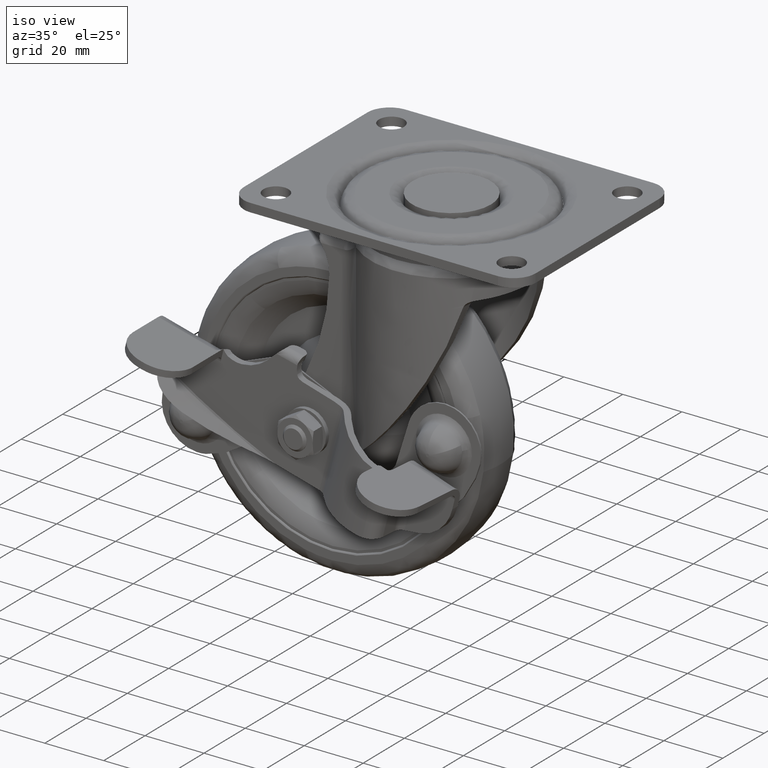
[diagram: clean part render]
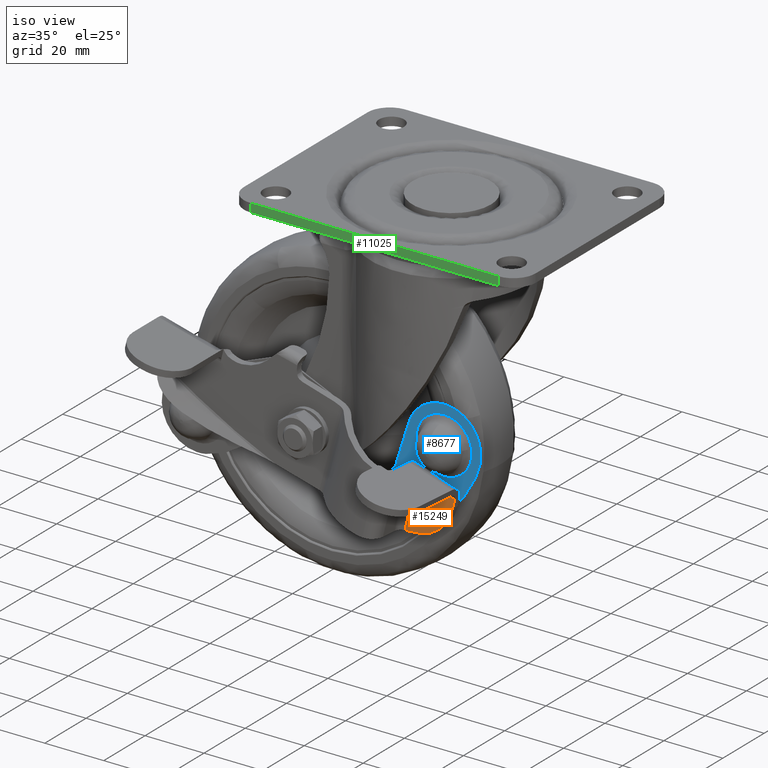
[diagram: same view with three faces highlighted in distinct colors, each labeled with its STEP entity id]
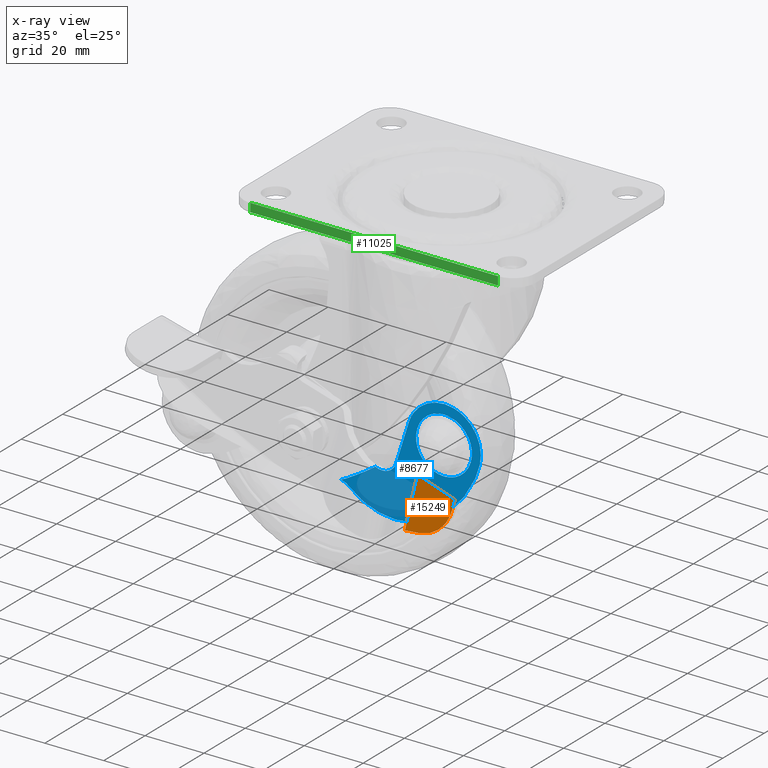
[diagram: x-ray of the same camera — body ghosted, the three highlighted faces saturated]
A machine part, iso view with three faces highlighted in distinct colors.
The next image is the same camera in x-ray (body ghosted, the three faces saturated) — at least one of them is partly hidden behind the body in this view.
Their STEP definitions:

[orange] entity #15249 — the highlighted face is a freeform B-spline surface patch.
#12298=CARTESIAN_POINT('',(4.928505042548230,-22.147842466118750,-94.650247182660905));
#12299=VERTEX_POINT('',#12298);
#12300=CARTESIAN_POINT('',(16.477124624208400,-23.188666743639299,-83.714800008653995));
#12301=VERTEX_POINT('',#12300);
#12302=CARTESIAN_POINT('',(4.928505042548230,-22.147842466118750,-94.650247182660905));
#12303=CARTESIAN_POINT('',(6.039942659360682,-22.248011256539819,-94.428720153109424));
#12304=CARTESIAN_POINT('',(8.295730696862936,-22.451315117903551,-93.703268879170835));
#12305=CARTESIAN_POINT('',(11.222599797990680,-22.715100447053750,-91.917436615906283));
#12306=CARTESIAN_POINT('',(13.354150865981049,-22.907207398421569,-89.826574290826031));
#12307=CARTESIAN_POINT('',(15.238442535516500,-23.077029990785459,-87.188851767007833));
#12308=CARTESIAN_POINT('',(16.104484647640430,-23.155082406425372,-85.154874591796997));
#12309=CARTESIAN_POINT('',(16.477124624208400,-23.188666743639299,-83.714800008653995));
#12310=B_SPLINE_CURVE_WITH_KNOTS('',3,(#12302,#12303,#12304,#12305,#12306,#12307,#12308,#12309),.UNSPECIFIED.,.F.,.U.,(4,1,1,1,1,4),(0.000000086868337,3.413161323361107,7.088946842061720,10.239465602790171,12.339928231656719,16.803307958044840),.UNSPECIFIED.);
#12311=EDGE_CURVE('',#12299,#12301,#12310,.T.);
#12724=CARTESIAN_POINT('',(3.778076320847235,-22.044159585698502,-77.067411118623596));
#12725=VERTEX_POINT('',#12724);
#12760=CARTESIAN_POINT('',(-0.702437590623382,-21.640351353740400,-95.418488651041102));
#12761=VERTEX_POINT('',#12760);
#12762=CARTESIAN_POINT('',(3.778076320847235,-22.044159585698502,-77.067411118623596));
#12763=CARTESIAN_POINT('',(-0.702437590623382,-21.640351353740400,-95.418488651041102));
#12764=QUASI_UNIFORM_CURVE('',1,(#12762,#12763),.UNSPECIFIED.,.F.,.U.);
#12765=EDGE_CURVE('',#12725,#12761,#12764,.T.);
#12819=CARTESIAN_POINT('',(17.285224953219199,-23.261497131302448,-80.598841801796993));
#12820=VERTEX_POINT('',#12819);
#12821=CARTESIAN_POINT('',(17.285224953219199,-23.261497131302448,-80.598841801796993));
#12822=CARTESIAN_POINT('',(3.778076320847235,-22.044159585698502,-77.067411118623596));
#12823=QUASI_UNIFORM_CURVE('',1,(#12821,#12822),.UNSPECIFIED.,.F.,.U.);
#12824=EDGE_CURVE('',#12820,#12725,#12823,.T.);
#13632=CARTESIAN_POINT('',(16.477124624208400,-23.188666743639299,-83.714800008653995));
#13633=CARTESIAN_POINT('',(17.285224953219199,-23.261497131302448,-80.598841801796993));
#13634=QUASI_UNIFORM_CURVE('',1,(#13632,#13633),.UNSPECIFIED.,.F.,.U.);
#13635=EDGE_CURVE('',#12301,#12820,#13634,.T.);
#14425=CARTESIAN_POINT('',(4.928505042548230,-22.147842466118750,-94.650247182660905));
#14426=CARTESIAN_POINT('',(3.069420522494041,-21.980291678879421,-95.021033759333420));
#14427=CARTESIAN_POINT('',(1.187777974505539,-21.810707839727559,-95.277737130884248));
#14428=CARTESIAN_POINT('',(-0.702437590623382,-21.640351353740400,-95.418488651041102));
#14429=B_SPLINE_CURVE_WITH_KNOTS('',3,(#14425,#14426,#14427,#14428),.UNSPECIFIED.,.F.,.U.,(4,4),(1.216257E-009,5.709276673890964),.UNSPECIFIED.);
#14430=EDGE_CURVE('',#12299,#12761,#14429,.T.);
#15237=CARTESIAN_POINT('',(-1.600921299824737,-21.559375125293240,-76.150777136478453));
#15238=CARTESIAN_POINT('',(18.183709144887260,-23.342473403232109,-76.150777136478453));
#15239=CARTESIAN_POINT('',(-1.600921299824737,-21.559375125293240,-96.335123945757616));
#15240=CARTESIAN_POINT('',(18.183709144887260,-23.342473403232109,-96.335123945757616));
#15241=B_SPLINE_SURFACE_WITH_KNOTS('',1,1,((#15237,#15239),(#15238,#15240)),.UNSPECIFIED.,.F.,.F.,.U.,(2,2),(2,2),(0.0,19.864819186255211),(0.0,20.184346809279159),.UNSPECIFIED.);
#15242=ORIENTED_EDGE('',*,*,#14430,.F.);
#15243=ORIENTED_EDGE('',*,*,#12311,.T.);
#15244=ORIENTED_EDGE('',*,*,#13635,.T.);
#15245=ORIENTED_EDGE('',*,*,#12824,.T.);
#15246=ORIENTED_EDGE('',*,*,#12765,.T.);
#15247=EDGE_LOOP('',(#15242,#15243,#15244,#15245,#15246));
#15248=FACE_OUTER_BOUND('',#15247,.T.);
#15249=ADVANCED_FACE('',(#15248),#15241,.F.);

[blue] entity #8677 — the highlighted face is a freeform B-spline surface patch.
#4903=CARTESIAN_POINT('',(17.879526056759371,-15.800000000000001,-67.995695562193390));
#4904=VERTEX_POINT('',#4903);
#4915=CARTESIAN_POINT('',(8.466438999999900,-15.800000000000001,-59.696942999999983));
#4916=VERTEX_POINT('',#4915);
#4917=CARTESIAN_POINT('',(8.466438999999900,-15.800000000000001,-59.696942999999983));
#4918=CARTESIAN_POINT('',(9.680649921968385,-15.800000000000010,-59.695789105920632));
#4919=CARTESIAN_POINT('',(11.607876973364510,-15.799999999999990,-60.072202856957297));
#4920=CARTESIAN_POINT('',(13.692738892618589,-15.800000000000010,-61.202997166908922));
#4921=CARTESIAN_POINT('',(15.031255565523130,-15.800000000000001,-62.279699674387082));
#4922=CARTESIAN_POINT('',(16.137620655778449,-15.800000000000001,-63.502708167142167));
#4923=CARTESIAN_POINT('',(17.288400326420099,-15.800000000000001,-65.407376580962591));
#4924=CARTESIAN_POINT('',(17.754695680286911,-15.800000000000010,-67.003677720720091));
#4925=CARTESIAN_POINT('',(17.879526056759371,-15.800000000000001,-67.995695562193390));
#4926=B_SPLINE_CURVE_WITH_KNOTS('',3,(#4917,#4918,#4919,#4920,#4921,#4922,#4923,#4924,#4925),.UNSPECIFIED.,.F.,.U.,(4,1,1,1,1,1,4),(0.000000100593509,3.642143002269124,5.784596378793479,7.070021977323084,8.783936148368509,10.712177525431660,13.711567911572351),.UNSPECIFIED.);
#4927=EDGE_CURVE('',#4916,#4904,#4926,.T.);
#4929=CARTESIAN_POINT('',(-0.946648056759568,-15.800000000000001,-70.373994437806800));
#4930=VERTEX_POINT('',#4929);
#4931=CARTESIAN_POINT('',(-0.946648056759568,-15.800000000000001,-70.373994437806800));
#4932=CARTESIAN_POINT('',(-1.030808169815192,-15.799999999999960,-69.708642804212957));
#4933=CARTESIAN_POINT('',(-1.057976548756640,-15.800000000000070,-68.317869431924308));
#4934=CARTESIAN_POINT('',(-0.699378421961215,-15.799999999999971,-66.539832735688805));
#4935=CARTESIAN_POINT('',(0.029251631759985,-15.800000000000040,-64.704659816834777));
#4936=CARTESIAN_POINT('',(1.020731357388698,-15.799999999999990,-63.180604996818211));
#4937=CARTESIAN_POINT('',(2.493219507765403,-15.800000000000001,-61.737717595550301));
#4938=CARTESIAN_POINT('',(4.041335826966635,-15.800000000000010,-60.716380668712382));
#4939=CARTESIAN_POINT('',(6.077376226671046,-15.800000000000001,-59.908528775567810));
#4940=CARTESIAN_POINT('',(7.586172183992257,-15.800000000000001,-59.696607495552122));
#4941=CARTESIAN_POINT('',(8.466438999999900,-15.800000000000001,-59.696942999999983));
#4942=B_SPLINE_CURVE_WITH_KNOTS('',3,(#4931,#4932,#4933,#4934,#4935,#4936,#4937,#4938,#4939,#4940,#4941),.UNSPECIFIED.,.F.,.U.,(4,1,1,1,1,1,1,1,4),(0.000000456229678,2.011959540050206,4.149742683847633,5.407277901912261,7.922349894593872,9.556964401201757,11.568963380957150,13.455252513971169,16.095964338495250),.UNSPECIFIED.);
#4943=EDGE_CURVE('',#4930,#4916,#4942,.T.);
#4996=CARTESIAN_POINT('',(8.466438999999900,-15.800000000000001,-78.672747000000200));
#4997=VERTEX_POINT('',#4996);
#4998=CARTESIAN_POINT('',(8.466438999999900,-15.800000000000001,-78.672747000000200));
#4999=CARTESIAN_POINT('',(7.466611414070922,-15.800000000000001,-78.673299229241337));
#5000=CARTESIAN_POINT('',(5.681594617286947,-15.800000000000020,-78.387855096458409));
#5001=CARTESIAN_POINT('',(3.272820112826314,-15.800000000000010,-77.252971490135820));
#5002=CARTESIAN_POINT('',(1.564016180406533,-15.799999999999979,-75.813720250466844));
#5003=CARTESIAN_POINT('',(0.314001118328552,-15.800000000000010,-74.151857592802543));
#5004=CARTESIAN_POINT('',(-0.534381875404205,-15.800000000000029,-72.409286242566907));
#5005=CARTESIAN_POINT('',(-0.857290037452985,-15.799999999999990,-71.082515963979830));
#5006=CARTESIAN_POINT('',(-0.946648056759568,-15.800000000000001,-70.373994437806800));
#5007=B_SPLINE_CURVE_WITH_KNOTS('',3,(#4998,#4999,#5000,#5001,#5002,#5003,#5004,#5005,#5006),.UNSPECIFIED.,.F.,.U.,(4,1,1,1,1,1,4),(0.000000100606178,2.999390486742964,5.356117017135428,7.926971633375271,9.640924423086002,11.569170828372190,13.711567911572329),.UNSPECIFIED.);
#5008=EDGE_CURVE('',#4997,#4930,#5007,.T.);
#5010=CARTESIAN_POINT('',(17.879526056759371,-15.800000000000001,-67.995695562193390));
#5011=CARTESIAN_POINT('',(17.953125399904579,-15.800000000000001,-68.577888201315488));
#5012=CARTESIAN_POINT('',(17.994615093420801,-15.800000000000001,-69.840124730623174));
#5013=CARTESIAN_POINT('',(17.667533902958571,-15.800000000000029,-71.794103665016067));
#5014=CARTESIAN_POINT('',(16.955252159973789,-15.799999999999921,-73.553630619801808));
#5015=CARTESIAN_POINT('',(15.923379395242030,-15.800000000000120,-75.139711459469765));
#5016=CARTESIAN_POINT('',(14.555277060455920,-15.799999999999960,-76.572666688056515));
#5017=CARTESIAN_POINT('',(12.925963642828510,-15.800000000000010,-77.632080978479408));
#5018=CARTESIAN_POINT('',(10.855366817493911,-15.799999999999990,-78.453495725642426));
#5019=CARTESIAN_POINT('',(9.430588972651989,-15.800000000000010,-78.673275282217432));
#5020=CARTESIAN_POINT('',(8.466438999999900,-15.800000000000001,-78.672747000000200));
#5021=B_SPLINE_CURVE_WITH_KNOTS('',3,(#5010,#5011,#5012,#5013,#5014,#5015,#5016,#5017,#5018,#5019,#5020),.UNSPECIFIED.,.F.,.U.,(4,1,1,1,1,1,1,1,4),(0.000000456240594,1.760493477244836,3.772487958014418,5.910240021854095,7.419243875129407,9.431142363170107,11.820466547863090,13.203756388510170,16.095964338495250),.UNSPECIFIED.);
#5022=EDGE_CURVE('',#4904,#4997,#5021,.T.);
#6584=CARTESIAN_POINT('',(-26.495255120143050,-15.800000000000001,-89.026094466109896));
#6585=VERTEX_POINT('',#6584);
#6630=CARTESIAN_POINT('',(-24.659731101127100,-15.800000000000001,-88.131700459813800));
#6631=VERTEX_POINT('',#6630);
#6650=CARTESIAN_POINT('',(-24.659731101127100,-15.800000000000001,-88.131700459813800));
#6651=CARTESIAN_POINT('',(-25.252884885594948,-15.800000000000001,-88.466315432143816));
#6652=CARTESIAN_POINT('',(-25.866204850187351,-15.800000000000020,-88.765158602729230));
#6653=CARTESIAN_POINT('',(-26.495255120143050,-15.800000000000001,-89.026094466109896));
#6654=B_SPLINE_CURVE_WITH_KNOTS('',3,(#6650,#6651,#6652,#6653),.UNSPECIFIED.,.F.,.U.,(4,4),(1.636885E-009,2.043087447987140),.UNSPECIFIED.);
#6655=EDGE_CURVE('',#6631,#6585,#6654,.T.);
#6677=CARTESIAN_POINT('',(-21.886790707758848,-15.800000000000001,-86.508807334516504));
#6678=VERTEX_POINT('',#6677);
#6697=CARTESIAN_POINT('',(-21.886790707758848,-15.800000000000001,-86.508807334516504));
#6698=CARTESIAN_POINT('',(-24.659731101127100,-15.800000000000001,-88.131700459813800));
#6699=QUASI_UNIFORM_CURVE('',1,(#6697,#6698),.UNSPECIFIED.,.F.,.U.);
#6700=EDGE_CURVE('',#6678,#6631,#6699,.T.);
#6763=CARTESIAN_POINT('',(-18.000325476490151,-15.800000000000001,-84.122099987815602));
#6764=VERTEX_POINT('',#6763);
#6785=CARTESIAN_POINT('',(-18.000325476490151,-15.800000000000001,-84.122099987815602));
#6786=CARTESIAN_POINT('',(-21.886790707758848,-15.800000000000001,-86.508807334516504));
#6787=QUASI_UNIFORM_CURVE('',1,(#6785,#6786),.UNSPECIFIED.,.F.,.U.);
#6788=EDGE_CURVE('',#6764,#6678,#6787,.T.);
#6812=CARTESIAN_POINT('',(-14.817912828488399,-15.800000000000001,-81.898917731192512));
#6813=VERTEX_POINT('',#6812);
#6851=CARTESIAN_POINT('',(-14.817912828488399,-15.800000000000001,-81.898917731192512));
#6852=CARTESIAN_POINT('',(-18.000325476490151,-15.800000000000001,-84.122099987815602));
#6853=QUASI_UNIFORM_CURVE('',1,(#6851,#6852),.UNSPECIFIED.,.F.,.U.);
#6854=EDGE_CURVE('',#6813,#6764,#6853,.T.);
#7720=CARTESIAN_POINT('',(-7.744955596167240,-15.800000000000001,-78.949488484495305));
#7721=VERTEX_POINT('',#7720);
#7722=CARTESIAN_POINT('',(-14.817912828488399,-15.800000000000001,-81.898917731192512));
#7723=CARTESIAN_POINT('',(-14.252820587137650,-15.800000000000020,-82.192298953562570));
#7724=CARTESIAN_POINT('',(-13.053417921251670,-15.799999999999971,-82.545456823661027));
#7725=CARTESIAN_POINT('',(-11.442026901350321,-15.800000000000001,-82.414297189521236));
#7726=CARTESIAN_POINT('',(-10.204213554250080,-15.800000000000010,-81.936791631035391));
#7727=CARTESIAN_POINT('',(-9.289551052645326,-15.799999999999949,-81.329651160230299));
#7728=CARTESIAN_POINT('',(-8.369235083411507,-15.800000000000029,-80.374024813463805));
#7729=CARTESIAN_POINT('',(-7.920761145292990,-15.799999999999979,-79.513966500837000));
#7730=CARTESIAN_POINT('',(-7.744955596167240,-15.800000000000001,-78.949488484495305));
#7731=B_SPLINE_CURVE_WITH_KNOTS('',3,(#7722,#7723,#7724,#7725,#7726,#7727,#7728,#7729,#7730),.UNSPECIFIED.,.F.,.U.,(4,1,1,1,1,1,4),(0.000000446417358,1.909976609785024,3.683619948812411,4.774853402862220,5.866323651960691,6.957802892748381,8.731329179428375),.UNSPECIFIED.);
#7732=EDGE_CURVE('',#6813,#7721,#7731,.T.);
#8028=CARTESIAN_POINT('',(-23.872752208038751,-15.800000000000001,-90.242676862733902));
#8029=VERTEX_POINT('',#8028);
#8035=CARTESIAN_POINT('',(-23.872752208038751,-15.800000000000001,-90.242676862733902));
#8036=CARTESIAN_POINT('',(-24.214865643820360,-15.799999999999990,-89.937756782375914));
#8037=CARTESIAN_POINT('',(-25.034957305862790,-15.800000000000029,-89.388798921176715));
#8038=CARTESIAN_POINT('',(-25.981009184311819,-15.799999999999990,-89.098870688963572));
#8039=CARTESIAN_POINT('',(-26.495255120143050,-15.800000000000001,-89.026094466109896));
#8040=B_SPLINE_CURVE_WITH_KNOTS('',3,(#8035,#8036,#8037,#8038,#8039),.UNSPECIFIED.,.F.,.U.,(4,1,4),(0.000000065235974,1.374807675266985,2.932854835953611),.UNSPECIFIED.);
#8041=EDGE_CURVE('',#8029,#6585,#8040,.T.);
#8063=CARTESIAN_POINT('',(3.654842872924255,-15.800000000000001,-93.350422808936102));
#8064=VERTEX_POINT('',#8063);
#8070=CARTESIAN_POINT('',(-23.872752208038751,-15.800000000000001,-90.242676862733902));
#8071=CARTESIAN_POINT('',(-22.093119613841420,-15.799999999999990,-91.829048764396902));
#8072=CARTESIAN_POINT('',(-18.511780162637571,-15.800000000000029,-94.166575435570607));
#8073=CARTESIAN_POINT('',(-13.137215551557230,-15.799999999999960,-95.913319149166341));
#8074=CARTESIAN_POINT('',(-8.611667743114312,-15.799999999999979,-96.423967305525252));
#8075=CARTESIAN_POINT('',(-4.682679852469690,-15.800000000000020,-96.204503972973697));
#8076=CARTESIAN_POINT('',(-0.537683703441451,-15.799999999999990,-95.301851503745965));
#8077=CARTESIAN_POINT('',(2.172511430801392,-15.800000000000020,-94.165943539800054));
#8078=CARTESIAN_POINT('',(3.654842872924255,-15.800000000000001,-93.350422808936102));
#8079=B_SPLINE_CURVE_WITH_KNOTS('',3,(#8070,#8071,#8072,#8073,#8074,#8075,#8076,#8077,#8078),.UNSPECIFIED.,.F.,.U.,(4,1,1,1,1,1,4),(0.000000170765851,7.151907700648899,12.688883061917119,16.841584280694910,20.763603706826551,24.454949680382640,29.530467171843831),.UNSPECIFIED.);
#8080=EDGE_CURVE('',#8029,#8064,#8079,.T.);
#8101=CARTESIAN_POINT('',(19.066549042520251,-15.800000000000001,-76.503719789376802));
#8102=VERTEX_POINT('',#8101);
#8108=CARTESIAN_POINT('',(3.654842872924255,-15.800000000000001,-93.350422808936102));
#8109=CARTESIAN_POINT('',(5.458355859670198,-15.800000000000001,-92.358791405240552));
#8110=CARTESIAN_POINT('',(8.387265186337787,-15.800000000000001,-90.398795639954045));
#8111=CARTESIAN_POINT('',(11.887310799498779,-15.800000000000001,-87.216454614548454));
#8112=CARTESIAN_POINT('',(15.646561432034840,-15.799999999999971,-82.934979708461057));
#8113=CARTESIAN_POINT('',(17.850162380216481,-15.800000000000120,-79.275357552731862));
#8114=CARTESIAN_POINT('',(19.066549042520251,-15.800000000000001,-76.503719789376802));
#8115=B_SPLINE_CURVE_WITH_KNOTS('',3,(#8108,#8109,#8110,#8111,#8112,#8113,#8114),.UNSPECIFIED.,.F.,.U.,(4,1,1,1,4),(0.000000034332736,6.174454430208979,10.532930081221521,14.164907586104530,23.244992027284109),.UNSPECIFIED.);
#8116=EDGE_CURVE('',#8064,#8102,#8115,.T.);
#8137=CARTESIAN_POINT('',(20.633373239468899,-15.800000000000001,-71.844222312444785));
#8138=VERTEX_POINT('',#8137);
#8144=CARTESIAN_POINT('',(19.066549042520251,-15.800000000000001,-76.503719789376802));
#8145=CARTESIAN_POINT('',(19.726502796710900,-15.800000000000050,-75.001465560018687));
#8146=CARTESIAN_POINT('',(20.251612084540259,-15.799999999999921,-73.440026002532960));
#8147=CARTESIAN_POINT('',(20.633373239468899,-15.800000000000001,-71.844222312444785));
#8148=B_SPLINE_CURVE_WITH_KNOTS('',3,(#8144,#8145,#8146,#8147),.UNSPECIFIED.,.F.,.U.,(4,4),(2.912431E-009,4.922472393377122),.UNSPECIFIED.);
#8149=EDGE_CURVE('',#8102,#8138,#8148,.T.);
#8175=CARTESIAN_POINT('',(-3.455389813245250,-15.800000000000001,-65.209837796884187));
#8176=VERTEX_POINT('',#8175);
#8182=CARTESIAN_POINT('',(11.796249417558910,-15.800000000000001,-56.881800038463453));
#8183=VERTEX_POINT('',#8182);
#8184=CARTESIAN_POINT('',(11.796249417558910,-15.800000000000001,-56.881800038463453));
#8185=CARTESIAN_POINT('',(10.735049791082560,-15.799999999999960,-56.589168254117361));
#8186=CARTESIAN_POINT('',(8.534845299496949,-15.800000000000139,-56.287152326739772));
#8187=CARTESIAN_POINT('',(5.831442355086073,-15.799999999999820,-56.633565880161584));
#8188=CARTESIAN_POINT('',(3.594940405965510,-15.800000000000200,-57.374311037764237));
#8189=CARTESIAN_POINT('',(1.623809988114468,-15.799999999999759,-58.374769532736771));
#8190=CARTESIAN_POINT('',(-0.343787316763569,-15.800000000000161,-59.946200153414061));
#8191=CARTESIAN_POINT('',(-2.224038604372396,-15.799999999999899,-62.239798158180861));
#8192=CARTESIAN_POINT('',(-3.098204310866376,-15.800000000000001,-64.063270118109685));
#8193=CARTESIAN_POINT('',(-3.455389813245250,-15.800000000000001,-65.209837796884187));
#8194=B_SPLINE_CURVE_WITH_KNOTS('',3,(#8184,#8185,#8186,#8187,#8188,#8189,#8190,#8191,#8192,#8193),.UNSPECIFIED.,.F.,.U.,(4,1,1,1,1,1,1,4),(0.000000347246239,3.302353795717895,6.604739143865565,8.105818880936727,10.357410404740371,13.209438193196670,15.611211594605910,19.213766413180011),.UNSPECIFIED.);
#8195=EDGE_CURVE('',#8183,#8176,#8194,.T.);
#8197=CARTESIAN_POINT('',(20.633373239468899,-15.800000000000001,-71.844222312444785));
#8198=CARTESIAN_POINT('',(20.878350899739299,-15.799999999999990,-70.822432469672762));
#8199=CARTESIAN_POINT('',(21.119359144335309,-15.800000000000010,-68.616397555216736));
#8200=CARTESIAN_POINT('',(20.658822262038228,-15.799999999999990,-65.671961965304646));
#8201=CARTESIAN_POINT('',(19.493469018825550,-15.800000000000010,-62.783133405458592));
#8202=CARTESIAN_POINT('',(17.825086432772800,-15.799999999999891,-60.433699228193667));
#8203=CARTESIAN_POINT('',(15.171089824624550,-15.800000000000370,-58.193859627455659));
#8204=CARTESIAN_POINT('',(13.099054425256149,-15.799999999999720,-57.239714970279053));
#8205=CARTESIAN_POINT('',(11.796249417558910,-15.800000000000001,-56.881800038463453));
#8206=B_SPLINE_CURVE_WITH_KNOTS('',3,(#8197,#8198,#8199,#8200,#8201,#8202,#8203,#8204,#8205),.UNSPECIFIED.,.F.,.U.,(4,1,1,1,1,1,4),(0.000000347213586,3.152216540441259,6.604740872091107,8.856360376427190,12.458883207311811,15.160871334585670,19.213771440809811),.UNSPECIFIED.);
#8207=EDGE_CURVE('',#8138,#8183,#8206,.T.);
#8217=CARTESIAN_POINT('',(-7.744955596167240,-15.800000000000001,-78.949488484495305));
#8218=CARTESIAN_POINT('',(-3.455389813245250,-15.800000000000001,-65.209837796884187));
#8219=QUASI_UNIFORM_CURVE('',1,(#8217,#8218),.UNSPECIFIED.,.F.,.U.);
#8220=EDGE_CURVE('',#7721,#8176,#8219,.T.);
#8652=CARTESIAN_POINT('',(-28.866359172571070,-15.800000000000001,-54.441805486009137));
#8653=CARTESIAN_POINT('',(23.345411992862839,-15.800000000000001,-54.441805486009137));
#8654=CARTESIAN_POINT('',(-28.866359172571070,-15.800000000000001,-98.311604893934643));
#8655=CARTESIAN_POINT('',(23.345411992862839,-15.800000000000001,-98.311604893934643));
#8656=B_SPLINE_SURFACE_WITH_KNOTS('',1,1,((#8652,#8654),(#8653,#8655)),.UNSPECIFIED.,.F.,.F.,.U.,(2,2),(2,2),(0.0,52.211771165433923),(0.0,43.869799407925512),.UNSPECIFIED.);
#8657=ORIENTED_EDGE('',*,*,#6700,.T.);
#8658=ORIENTED_EDGE('',*,*,#6655,.T.);
#8659=ORIENTED_EDGE('',*,*,#8041,.F.);
#8660=ORIENTED_EDGE('',*,*,#8080,.T.);
#8661=ORIENTED_EDGE('',*,*,#8116,.T.);
#8662=ORIENTED_EDGE('',*,*,#8149,.T.);
#8663=ORIENTED_EDGE('',*,*,#8207,.T.);
#8664=ORIENTED_EDGE('',*,*,#8195,.T.);
#8665=ORIENTED_EDGE('',*,*,#8220,.F.);
#8666=ORIENTED_EDGE('',*,*,#7732,.F.);
#8667=ORIENTED_EDGE('',*,*,#6854,.T.);
#8668=ORIENTED_EDGE('',*,*,#6788,.T.);
#8669=EDGE_LOOP('',(#8657,#8658,#8659,#8660,#8661,#8662,#8663,#8664,#8665,#8666,#8667,#8668));
#8670=FACE_OUTER_BOUND('',#8669,.T.);
#8671=ORIENTED_EDGE('',*,*,#4927,.T.);
#8672=ORIENTED_EDGE('',*,*,#5022,.T.);
#8673=ORIENTED_EDGE('',*,*,#5008,.T.);
#8674=ORIENTED_EDGE('',*,*,#4943,.T.);
#8675=EDGE_LOOP('',(#8671,#8672,#8673,#8674));
#8676=FACE_BOUND('',#8675,.T.);
#8677=ADVANCED_FACE('',(#8670,#8676),#8656,.F.);

[green] entity #11025 — the highlighted face is a freeform B-spline surface patch.
#10708=CARTESIAN_POINT('',(-42.0,-37.500000000000000,0.0));
#10709=VERTEX_POINT('',#10708);
#10723=CARTESIAN_POINT('',(42.0,-37.500000000000000,0.0));
#10724=VERTEX_POINT('',#10723);
#10725=CARTESIAN_POINT('',(-42.0,-37.500000000000000,0.0));
#10726=CARTESIAN_POINT('',(42.0,-37.500000000000000,0.0));
#10727=QUASI_UNIFORM_CURVE('',1,(#10725,#10726),.UNSPECIFIED.,.F.,.U.);
#10728=EDGE_CURVE('',#10709,#10724,#10727,.T.);
#10842=CARTESIAN_POINT('',(42.0,-37.500000000000000,-2.899615000000000));
#10843=VERTEX_POINT('',#10842);
#10857=CARTESIAN_POINT('',(-42.0,-37.500000000000000,-2.899615000000000));
#10858=VERTEX_POINT('',#10857);
#10859=CARTESIAN_POINT('',(-42.0,-37.500000000000000,-2.899615000000000));
#10860=CARTESIAN_POINT('',(42.0,-37.500000000000000,-2.899615000000000));
#10861=QUASI_UNIFORM_CURVE('',1,(#10859,#10860),.UNSPECIFIED.,.F.,.U.);
#10862=EDGE_CURVE('',#10858,#10843,#10861,.T.);
#11000=CARTESIAN_POINT('',(42.0,-37.500000000000000,-2.899615000000000));
#11001=CARTESIAN_POINT('',(42.0,-37.500000000000000,0.0));
#11002=QUASI_UNIFORM_CURVE('',1,(#11000,#11001),.UNSPECIFIED.,.F.,.U.);
#11003=EDGE_CURVE('',#10843,#10724,#11002,.T.);
#11010=CARTESIAN_POINT('',(-46.195799837191707,-37.500000000000000,-3.044450818069005));
#11011=CARTESIAN_POINT('',(46.195802090247277,-37.500000000000000,-3.044450818069005));
#11012=CARTESIAN_POINT('',(-46.195799837191707,-37.500000000000000,0.144835843993584));
#11013=CARTESIAN_POINT('',(46.195802090247277,-37.500000000000000,0.144835843993584));
#11014=B_SPLINE_SURFACE_WITH_KNOTS('',1,1,((#11010,#11012),(#11011,#11013)),.UNSPECIFIED.,.F.,.F.,.U.,(2,2),(2,2),(0.0,92.391601927438984),(0.0,3.189286662062588),.UNSPECIFIED.);
#11015=ORIENTED_EDGE('',*,*,#10728,.F.);
#11016=CARTESIAN_POINT('',(-42.0,-37.500000000000000,-2.899615000000000));
#11017=CARTESIAN_POINT('',(-42.0,-37.500000000000000,0.0));
#11018=QUASI_UNIFORM_CURVE('',1,(#11016,#11017),.UNSPECIFIED.,.F.,.U.);
#11019=EDGE_CURVE('',#10858,#10709,#11018,.T.);
#11020=ORIENTED_EDGE('',*,*,#11019,.F.);
#11021=ORIENTED_EDGE('',*,*,#10862,.T.);
#11022=ORIENTED_EDGE('',*,*,#11003,.T.);
#11023=EDGE_LOOP('',(#11015,#11020,#11021,#11022));
#11024=FACE_OUTER_BOUND('',#11023,.T.);
#11025=ADVANCED_FACE('',(#11024),#11014,.T.);